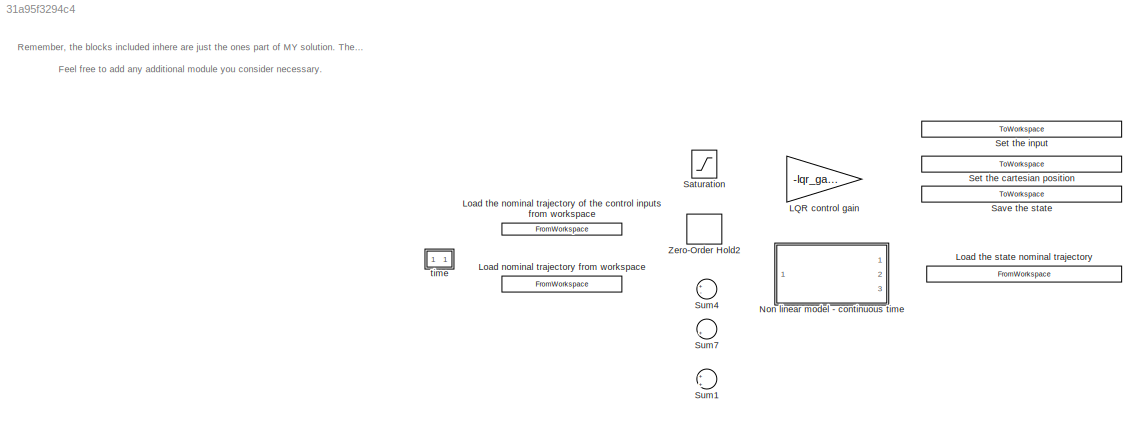
MODEL slx_31a95f3294c4
KIND model
CONFIG AbsTol = auto
CONFIG EnableMultiTasking = on
CONFIG FixedStep = auto
CONFIG MaxStep = 0.01
CONFIG MinStep = auto
CONFIG RelTol = 1e-3
CONFIG SampleTimeConstraint = Unconstrained
CONFIG Solver = ode45
CONFIG SolverName = ode45
CONFIG StartTime = 0.0
CONFIG StopTime = simulation_time
BLOCK [Gain] LQR control gain
  Gain = -lqr_gain
  Multiplication = Matrix(K*u)
  OutDataTypeStr = Inherit: Inherit via internal rule
  ParamDataTypeStr = Inherit: Inherit via internal rule
  SaturateOnIntegerOverflow = off
BLOCK [FromWorkspace] Load nominal trajectory from workspace
  Interpolate = off
  OutputAfterFinalValue = Holding final value
  SampleTime = sampling_time
  VariableName = nominal_trajectory_x
  ZeroCross = on
BLOCK [FromWorkspace] Load the nominal trajectory of the control inputs from workspace
  Interpolate = off
  OutputAfterFinalValue = Holding final value
  SampleTime = sampling_time
  VariableName = nominal_trajectory_u
  ZeroCross = on
BLOCK [FromWorkspace] Load the state nominal trajectory 
  OutputAfterFinalValue = Holding final value
  SampleTime = sampling_time
  VariableName = nominal_trajectory_x
  ZeroCross = on
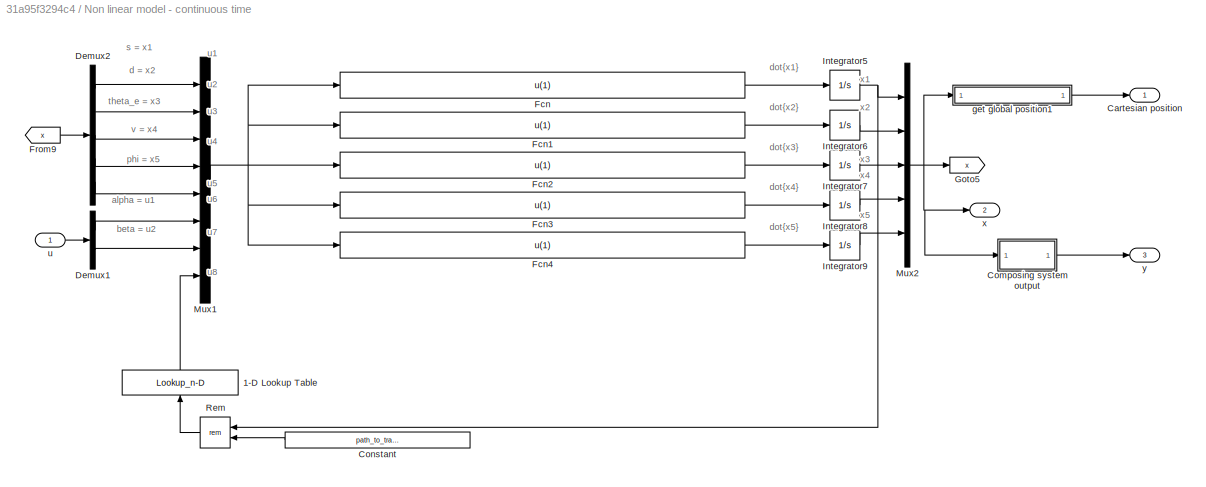
BLOCK [SubSystem] Non linear model - continuous time
  Ports = [1, 3]
  RequestExecContextInheritance = off
BLOCK [Lookup_n-D] Non linear model - continuous time/1-D Lookup Table
  BreakpointsForDimension1 = path_to_track.s_coordinate
  InternalRulePriority = Speed
  NumberOfTableDimensions = 1
  Ports = [1, 1]
  RndMeth = Simplest
  Table = path_to_track.curvature
BLOCK [Outport] Non linear model - continuous time/Cartesian position
  IconDisplay = Port number
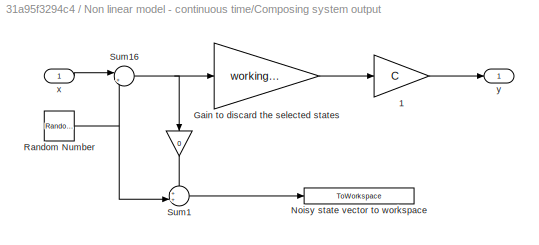
BLOCK [SubSystem] Non linear model - continuous time/Composing system output
  Ports = [1, 1]
  RequestExecContextInheritance = off
BLOCK [Gain] Non linear model - continuous time/Composing system output/ 
  Gain = 0
  OutDataTypeStr = Inherit: Inherit via internal rule
  ParamDataTypeStr = Inherit: Inherit via internal rule
  SaturateOnIntegerOverflow = off
BLOCK [Gain] Non linear model - continuous time/Composing system output/ 1
  Gain = C
  Multiplication = Matrix(K*u)
  OutDataTypeStr = Inherit: Inherit via internal rule
  ParamDataTypeStr = Inherit: Inherit via internal rule
  SaturateOnIntegerOverflow = off
BLOCK [Gain] Non linear model - continuous time/Composing system output/Gain to discard the selected states
  Gain = working_sensor
  OutDataTypeStr = Inherit: Inherit via internal rule
  ParamDataTypeStr = Inherit: Inherit via internal rule
  SaturateOnIntegerOverflow = off
BLOCK [ToWorkspace] Non linear model - continuous time/Composing system output/Noisy state vector to workspace
  MaxDataPoints = inf
  Ports = [1]
  SampleTime = -1
  VariableName = noise
BLOCK [RandomNumber] Non linear model - continuous time/Composing system output/Random Number
  Mean = noiseMod.mean
  SampleTime = 1/noiseMod.freq
  Seed = noiseMod.seed
  Variance = noiseMod.std_deviation.^2
BLOCK [Sum] Non linear model - continuous time/Composing system output/Sum1
  IconShape = round
  InputSameDT = off
  Inputs = ++|
  OutDataTypeStr = Inherit: Inherit via internal rule
  Ports = [2, 1]
  SaturateOnIntegerOverflow = off
BLOCK [Sum] Non linear model - continuous time/Composing system output/Sum16
  IconShape = round
  InputSameDT = off
  Inputs = |++
  OutDataTypeStr = Inherit: Inherit via internal rule
  Ports = [2, 1]
  SaturateOnIntegerOverflow = off
BLOCK [Inport] Non linear model - continuous time/Composing system output/x
  IconDisplay = Port number
BLOCK [Outport] Non linear model - continuous time/Composing system output/y
  IconDisplay = Port number
BLOCK [Constant] Non linear model - continuous time/Constant
  Value = path_to_track.s_coordinate(end)
BLOCK [Demux] Non linear model - continuous time/Demux1
  DisplayOption = bar
  Outputs = 2
  Ports = [1, 2]
BLOCK [Demux] Non linear model - continuous time/Demux2
  DisplayOption = bar
  Outputs = 5
  Ports = [1, 5]
BLOCK [Fcn] Non linear model - continuous time/Fcn
  Expr = u(1)
BLOCK [Fcn] Non linear model - continuous time/Fcn1
  Expr = u(1)
BLOCK [Fcn] Non linear model - continuous time/Fcn2
  Expr = u(1)
BLOCK [Fcn] Non linear model - continuous time/Fcn3
  Expr = u(1)
BLOCK [Fcn] Non linear model - continuous time/Fcn4
  Expr = u(1)
BLOCK [From] Non linear model - continuous time/From9
  GotoTag = x
BLOCK [Goto] Non linear model - continuous time/Goto5
  GotoTag = x
BLOCK [Integrator] Non linear model - continuous time/Integrator5
  InitialCondition = x0(1)
  Ports = [1, 1]
BLOCK [Integrator] Non linear model - continuous time/Integrator6
  InitialCondition = x0(2)
  Ports = [1, 1]
BLOCK [Integrator] Non linear model - continuous time/Integrator7
  InitialCondition = x0(3)
  Ports = [1, 1]
BLOCK [Integrator] Non linear model - continuous time/Integrator8
  InitialCondition = x0(4)
  Ports = [1, 1]
BLOCK [Integrator] Non linear model - continuous time/Integrator9
  InitialCondition = x0(5)
  Ports = [1, 1]
BLOCK [Mux] Non linear model - continuous time/Mux1
  DisplayOption = bar
  Inputs = 8
  Ports = [8, 1]
BLOCK [Mux] Non linear model - continuous time/Mux2
  DisplayOption = bar
  Inputs = 5
  Ports = [5, 1]
BLOCK [Math] Non linear model - continuous time/Rem
  Operator = rem
  Ports = [2, 1]
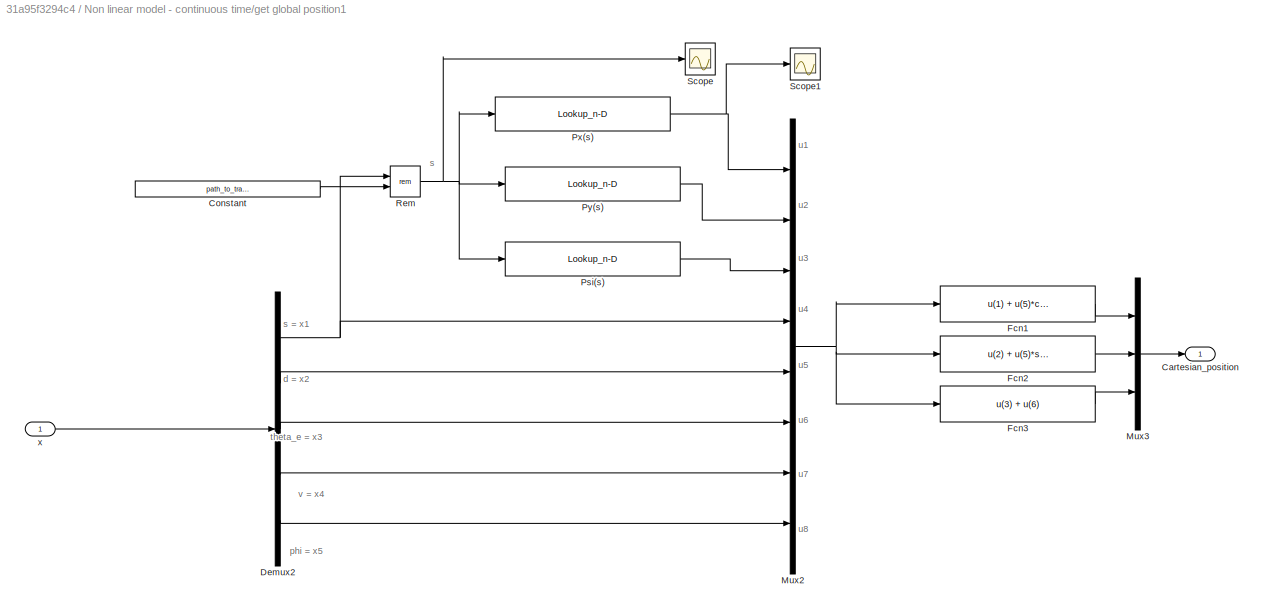
BLOCK [SubSystem] Non linear model - continuous time/get global position1
  Ports = [1, 1]
  RequestExecContextInheritance = off
BLOCK [Outport] Non linear model - continuous time/get global position1/Cartesian_position 
  IconDisplay = Port number
BLOCK [Constant] Non linear model - continuous time/get global position1/Constant
  Value = path_to_track.s_coordinate(end)
BLOCK [Demux] Non linear model - continuous time/get global position1/Demux2
  DisplayOption = bar
  Outputs = 5
  Ports = [1, 5]
BLOCK [Fcn] Non linear model - continuous time/get global position1/Fcn1
  Expr = u(1) + u(5)*cos(u(3) + pi/2)
BLOCK [Fcn] Non linear model - continuous time/get global position1/Fcn2
  Expr = u(2) + u(5)*sin(u(3) + pi/2)
BLOCK [Fcn] Non linear model - continuous time/get global position1/Fcn3
  Expr = u(3) + u(6)
BLOCK [Mux] Non linear model - continuous time/get global position1/Mux2
  DisplayOption = bar
  Inputs = 8
  Ports = [8, 1]
BLOCK [Mux] Non linear model - continuous time/get global position1/Mux3
  DisplayOption = bar
  Inputs = 3
  Ports = [3, 1]
BLOCK [Lookup_n-D] Non linear model - continuous time/get global position1/Psi(s)
  BreakpointsForDimension1 = path_to_track.s_coordinate
  InternalRulePriority = Speed
  NumberOfTableDimensions = 1
  Ports = [1, 1]
  RndMeth = Simplest
  Table = path_to_track.orientation
BLOCK [Lookup_n-D] Non linear model - continuous time/get global position1/Px(s)
  BreakpointsForDimension1 = path_to_track.s_coordinate
  InternalRulePriority = Speed
  NumberOfTableDimensions = 1
  Ports = [1, 1]
  RndMeth = Simplest
  Table = path_to_track.coordinates(:,1)
BLOCK [Lookup_n-D] Non linear model - continuous time/get global position1/Py(s)
  BreakpointsForDimension1 = path_to_track.s_coordinate
  InternalRulePriority = Speed
  NumberOfTableDimensions = 1
  Ports = [1, 1]
  RndMeth = Simplest
  Table = path_to_track.coordinates(:,2)
BLOCK [Math] Non linear model - continuous time/get global position1/Rem
  Operator = rem
  Ports = [2, 1]
BLOCK [Scope] Non linear model - continuous time/get global position1/Scope
  Floating = off
  NumInputPorts = 1
  Ports = [1]
  ScopeSpecificationString = Simulink.scopes.TimeScopeBlockCfg('CurrentConfiguration', extmgr.ConfigurationSet(extmgr.Configuration('Core','General UI',true),extmgr.Configuration('Core','Source UI',true),extmgr.Configuration('Sources','WiredSimulink',true),extmgr.Configuration('Visuals','Time Domain',true,'SerializedDisplays',{struct('MinYLimReal','-23.93468','MaxYLimReal','214.65941','YLabelReal','','MinYLimMag','0.00000','M...<+1360ch>
BLOCK [Scope] Non linear model - continuous time/get global position1/Scope1
  Floating = off
  NumInputPorts = 1
  Ports = [1]
  ScopeSpecificationString = Simulink.scopes.TimeScopeBlockCfg('CurrentConfiguration', extmgr.ConfigurationSet(extmgr.Configuration('Core','General UI',true),extmgr.Configuration('Core','Source UI',true),extmgr.Configuration('Sources','WiredSimulink',true,'DataLoggingVariableName','ScopeData1'),extmgr.Configuration('Visuals','Time Domain',true,'SerializedDisplays',{struct('MinYLimReal','9999999998.22974','MaxYLimReal','999999...<+1459ch>
BLOCK [Inport] Non linear model - continuous time/get global position1/x
  IconDisplay = Port number
BLOCK [Inport] Non linear model - continuous time/u
  IconDisplay = Port number
BLOCK [Outport] Non linear model - continuous time/x
  IconDisplay = Port number
  Port = 2
BLOCK [Outport] Non linear model - continuous time/y
  IconDisplay = Port number
  Port = 3
BLOCK [Saturate] Saturation
  InputPortMap = u0
  LowerLimit = [0;-pi/4]
  Ports = [1, 1]
  UpperLimit = [Inf;pi/4]
BLOCK [ToWorkspace] Save the state
  MaxDataPoints = inf
  Ports = [1]
  SampleTime = -1
  VariableName = state
BLOCK [ToWorkspace] Set the cartesian position
  MaxDataPoints = inf
  Ports = [1]
  SampleTime = -1
  VariableName = Cartesian_position
BLOCK [ToWorkspace] Set the input
  MaxDataPoints = inf
  Ports = [1]
  SampleTime = -1
  VariableName = input
BLOCK [Sum] Sum1
  IconShape = round
  InputSameDT = off
  Inputs = +|+
  OutDataTypeStr = Inherit: Inherit via internal rule
  Ports = [2, 1]
  SaturateOnIntegerOverflow = off
BLOCK [Sum] Sum4
  IconShape = round
  InputSameDT = off
  Inputs = +-|
  OutDataTypeStr = Inherit: Inherit via internal rule
  Ports = [2, 1]
  SaturateOnIntegerOverflow = off
BLOCK [Sum] Sum7
  IconShape = round
  InputSameDT = off
  Inputs = |++
  OutDataTypeStr = Inherit: Inherit via internal rule
  Ports = [2, 1]
  SaturateOnIntegerOverflow = off
BLOCK [ZeroOrderHold] Zero-Order Hold2
  SampleTime = sampling_time
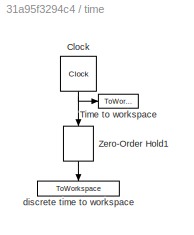
BLOCK [SubSystem] time
  Ports = []
  RequestExecContextInheritance = off
BLOCK [Clock] time/Clock
  DisplayTime = on
BLOCK [ToWorkspace] time/Time to workspace
  MaxDataPoints = inf
  Ports = [1]
  SampleTime = -1
  VariableName = time
BLOCK [ZeroOrderHold] time/Zero-Order Hold1
  SampleTime = sampling_time
BLOCK [ToWorkspace] time/discrete time to workspace
  MaxDataPoints = inf
  Ports = [1]
  SampleTime = -1
  VariableName = discrete_time
ANNOTATION (root): Remember, the blocks included inhere are just the ones part of MY solution. The essencial modules should most probably remain as they are while auxiliary modules like "sum", "mux" and "demux" modules might vary depending on your specific implementation. Feel free to add any additional module you consider necessary.
ANNOTATION Non linear model - continuous time: alpha = u1
ANNOTATION Non linear model - continuous time: beta = u2
ANNOTATION Non linear model - continuous time: d = x2
ANNOTATION Non linear model - continuous time: dot{x1}
ANNOTATION Non linear model - continuous time: dot{x2}
ANNOTATION Non linear model - continuous time: dot{x3}
ANNOTATION Non linear model - continuous time: dot{x4}
ANNOTATION Non linear model - continuous time: dot{x5}
ANNOTATION Non linear model - continuous time: phi = x5
ANNOTATION Non linear model - continuous time: s = x1
ANNOTATION Non linear model - continuous time: theta_e = x3
ANNOTATION Non linear model - continuous time: u1
ANNOTATION Non linear model - continuous time: u2
ANNOTATION Non linear model - continuous time: u3
ANNOTATION Non linear model - continuous time: u4
ANNOTATION Non linear model - continuous time: u5
ANNOTATION Non linear model - continuous time: u6
ANNOTATION Non linear model - continuous time: u7
ANNOTATION Non linear model - continuous time: u8
ANNOTATION Non linear model - continuous time: v = x4
ANNOTATION Non linear model - continuous time: x1
ANNOTATION Non linear model - continuous time: x2
ANNOTATION Non linear model - continuous time: x3
ANNOTATION Non linear model - continuous time: x4
ANNOTATION Non linear model - continuous time: x5
ANNOTATION Non linear model - continuous time/get global position1: d = x2
ANNOTATION Non linear model - continuous time/get global position1: phi = x5
ANNOTATION Non linear model - continuous time/get global position1: s
ANNOTATION Non linear model - continuous time/get global position1: s = x1
ANNOTATION Non linear model - continuous time/get global position1: theta_e = x3
ANNOTATION Non linear model - continuous time/get global position1: u1
ANNOTATION Non linear model - continuous time/get global position1: u2
ANNOTATION Non linear model - continuous time/get global position1: u3
ANNOTATION Non linear model - continuous time/get global position1: u4
ANNOTATION Non linear model - continuous time/get global position1: u5
ANNOTATION Non linear model - continuous time/get global position1: u6
ANNOTATION Non linear model - continuous time/get global position1: u7
ANNOTATION Non linear model - continuous time/get global position1: u8
ANNOTATION Non linear model - continuous time/get global position1: v = x4
LINE Non linear model - continuous time/1-D Lookup Table:1 -> Non linear model - continuous time/Mux1:8
LINE Non linear model - continuous time/Composing system output/ 1:1 -> Non linear model - continuous time/Composing system output/y:1
LINE Non linear model - continuous time/Composing system output/ :1 -> Non linear model - continuous time/Composing system output/Sum1:1
LINE Non linear model - continuous time/Composing system output/Gain to discard the selected states:1 -> Non linear model - continuous time/Composing system output/ 1:1
NET Non linear model - continuous time/Composing system output/Random Number:1 -> Non linear model - continuous time/Composing system output/Sum16:2, Non linear model - continuous time/Composing system output/Sum1:2
NET Non linear model - continuous time/Composing system output/Sum16:1 -> Non linear model - continuous time/Composing system output/ :1, Non linear model - continuous time/Composing system output/Gain to discard the selected states:1
LINE Non linear model - continuous time/Composing system output/Sum1:1 -> Non linear model - continuous time/Composing system output/Noisy state vector to workspace:1
LINE Non linear model - continuous time/Composing system output/x:1 -> Non linear model - continuous time/Composing system output/Sum16:1
LINE Non linear model - continuous time/Composing system output:1 -> Non linear model - continuous time/y:1
LINE Non linear model - continuous time/Constant:1 -> Non linear model - continuous time/Rem:2
LINE Non linear model - continuous time/Demux1:1 -> Non linear model - continuous time/Mux1:6
LINE Non linear model - continuous time/Demux1:2 -> Non linear model - continuous time/Mux1:7
LINE Non linear model - continuous time/Demux2:1 -> Non linear model - continuous time/Mux1:1
LINE Non linear model - continuous time/Demux2:2 -> Non linear model - continuous time/Mux1:2
LINE Non linear model - continuous time/Demux2:3 -> Non linear model - continuous time/Mux1:3
LINE Non linear model - continuous time/Demux2:4 -> Non linear model - continuous time/Mux1:4
LINE Non linear model - continuous time/Demux2:5 -> Non linear model - continuous time/Mux1:5
LINE Non linear model - continuous time/Fcn1:1 -> Non linear model - continuous time/Integrator6:1
LINE Non linear model - continuous time/Fcn2:1 -> Non linear model - continuous time/Integrator7:1
LINE Non linear model - continuous time/Fcn3:1 -> Non linear model - continuous time/Integrator8:1
LINE Non linear model - continuous time/Fcn4:1 -> Non linear model - continuous time/Integrator9:1
LINE Non linear model - continuous time/Fcn:1 -> Non linear model - continuous time/Integrator5:1
LINE Non linear model - continuous time/From9:1 -> Non linear model - continuous time/Demux2:1
NET Non linear model - continuous time/Integrator5:1 -> Non linear model - continuous time/Mux2:1, Non linear model - continuous time/Rem:1
LINE Non linear model - continuous time/Integrator6:1 -> Non linear model - continuous time/Mux2:2
LINE Non linear model - continuous time/Integrator7:1 -> Non linear model - continuous time/Mux2:3
LINE Non linear model - continuous time/Integrator8:1 -> Non linear model - continuous time/Mux2:4
LINE Non linear model - continuous time/Integrator9:1 -> Non linear model - continuous time/Mux2:5
NET Non linear model - continuous time/Mux1:1 -> Non linear model - continuous time/Fcn1:1, Non linear model - continuous time/Fcn2:1, Non linear model - continuous time/Fcn3:1, Non linear model - continuous time/Fcn4:1, Non linear model - continuous time/Fcn:1
NET Non linear model - continuous time/Mux2:1 -> Non linear model - continuous time/Composing system output:1, Non linear model - continuous time/Goto5:1, Non linear model - continuous time/get global position1:1, Non linear model - continuous time/x:1
LINE Non linear model - continuous time/Rem:1 -> Non linear model - continuous time/1-D Lookup Table:1
LINE Non linear model - continuous time/get global position1/Constant:1 -> Non linear model - continuous time/get global position1/Rem:2
NET Non linear model - continuous time/get global position1/Demux2:1 -> Non linear model - continuous time/get global position1/Mux2:4, Non linear model - continuous time/get global position1/Rem:1
LINE Non linear model - continuous time/get global position1/Demux2:2 -> Non linear model - continuous time/get global position1/Mux2:5
LINE Non linear model - continuous time/get global position1/Demux2:3 -> Non linear model - continuous time/get global position1/Mux2:6
LINE Non linear model - continuous time/get global position1/Demux2:4 -> Non linear model - continuous time/get global position1/Mux2:7
LINE Non linear model - continuous time/get global position1/Demux2:5 -> Non linear model - continuous time/get global position1/Mux2:8
LINE Non linear model - continuous time/get global position1/Fcn1:1 -> Non linear model - continuous time/get global position1/Mux3:1
LINE Non linear model - continuous time/get global position1/Fcn2:1 -> Non linear model - continuous time/get global position1/Mux3:2
LINE Non linear model - continuous time/get global position1/Fcn3:1 -> Non linear model - continuous time/get global position1/Mux3:3
NET Non linear model - continuous time/get global position1/Mux2:1 -> Non linear model - continuous time/get global position1/Fcn1:1, Non linear model - continuous time/get global position1/Fcn2:1, Non linear model - continuous time/get global position1/Fcn3:1
LINE Non linear model - continuous time/get global position1/Mux3:1 -> Non linear model - continuous time/get global position1/Cartesian_position :1
LINE Non linear model - continuous time/get global position1/Psi(s):1 -> Non linear model - continuous time/get global position1/Mux2:3
NET Non linear model - continuous time/get global position1/Px(s):1 -> Non linear model - continuous time/get global position1/Mux2:1, Non linear model - continuous time/get global position1/Scope1:1
LINE Non linear model - continuous time/get global position1/Py(s):1 -> Non linear model - continuous time/get global position1/Mux2:2
NET Non linear model - continuous time/get global position1/Rem:1 -> Non linear model - continuous time/get global position1/Psi(s):1, Non linear model - continuous time/get global position1/Px(s):1, Non linear model - continuous time/get global position1/Py(s):1, Non linear model - continuous time/get global position1/Scope:1
LINE Non linear model - continuous time/get global position1/x:1 -> Non linear model - continuous time/get global position1/Demux2:1
LINE Non linear model - continuous time/get global position1:1 -> Non linear model - continuous time/Cartesian position:1
LINE Non linear model - continuous time/u:1 -> Non linear model - continuous time/Demux1:1
NET time/Clock:1 -> time/Time to workspace:1, time/Zero-Order Hold1:1
LINE time/Zero-Order Hold1:1 -> time/discrete time to workspace:1
note: NET lines group one-source signal fan-out (src -> all destinations, sorted); 1:1 wires keep LINE
